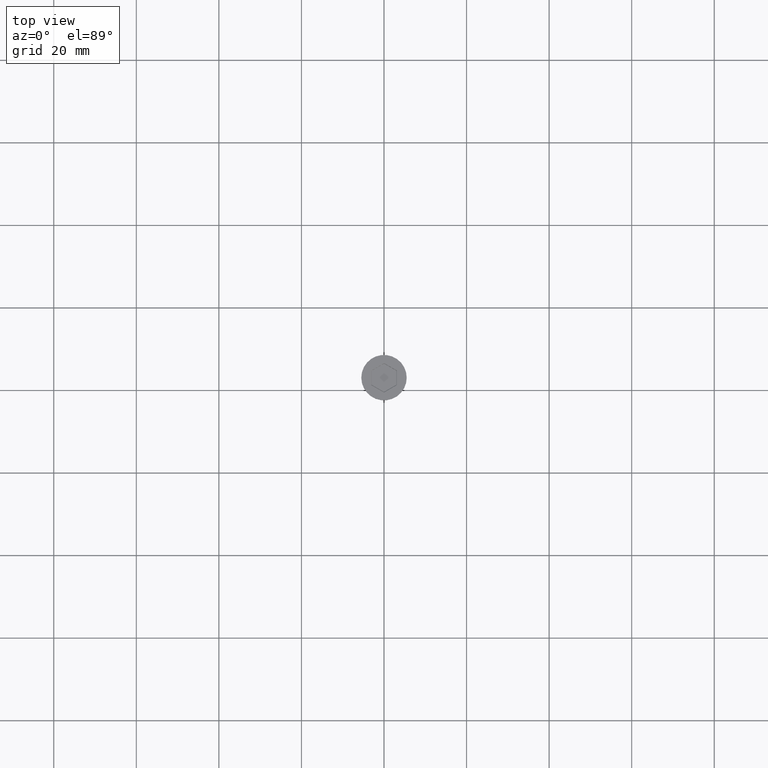
[diagram: clean part render]
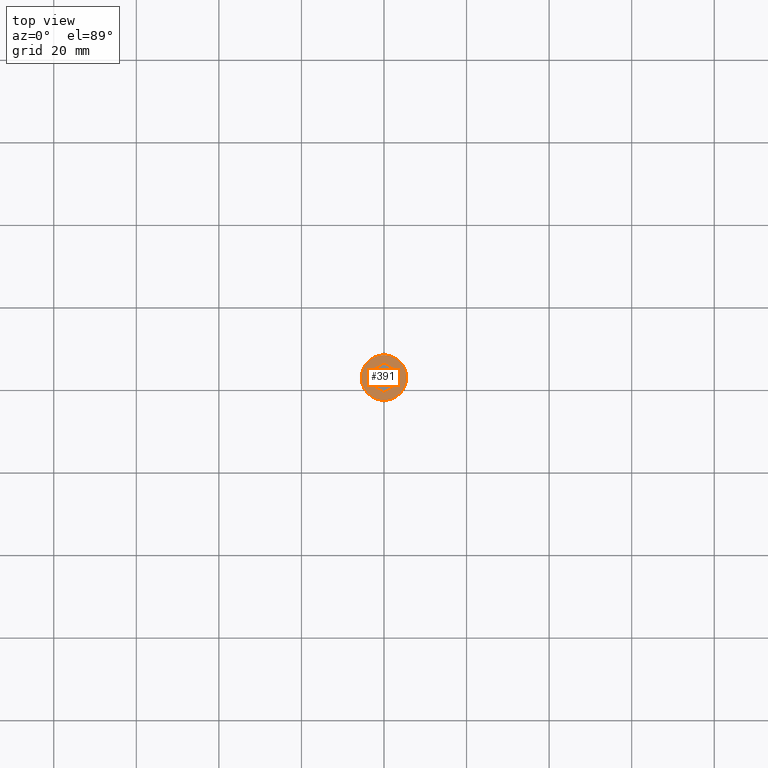
[diagram: same view with one face highlighted and labeled with its STEP entity id]
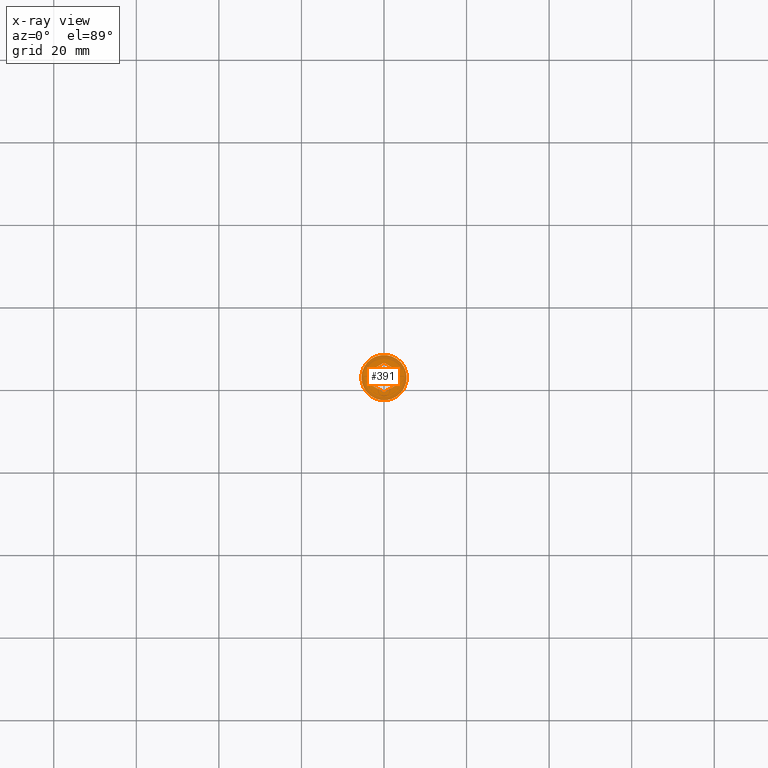
[diagram: x-ray of the same camera — body ghosted, the highlighted face saturated]
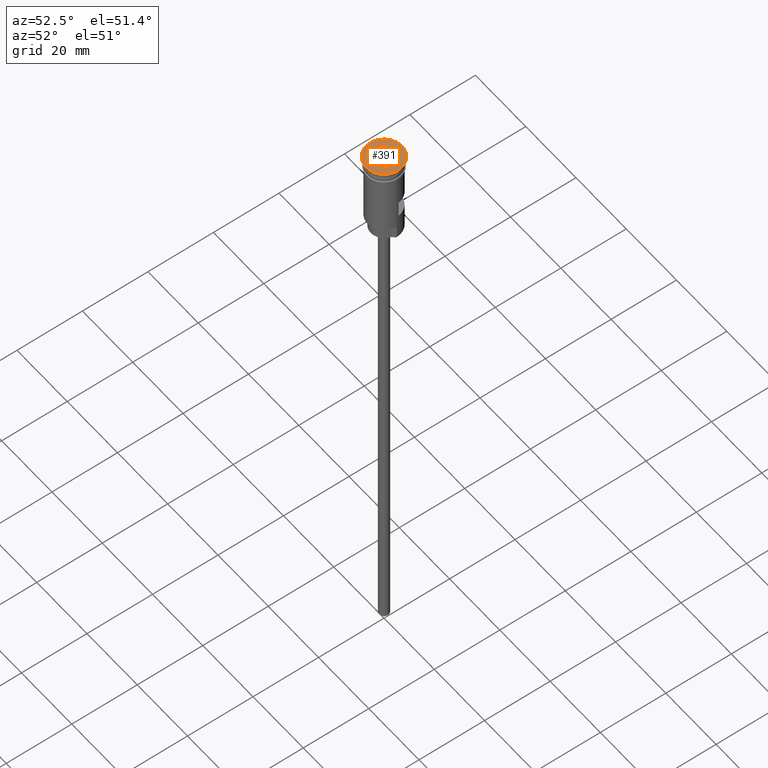
[diagram: same view with one face highlighted and labeled with its STEP entity id]
A machine part, top view. The second image highlights one B-rep face of the part: STEP entity #391.
The next image is the same camera in x-ray: the body ghosted, the highlighted face saturated — about 0% of this face is hidden behind the body in this view.
A second angle (auxiliary view) of the same face is appended — the face is thin or edge-on in the first view.
In plain terms, the highlighted planar face has unit normal (0, -0, 1).
Its self-contained STEP definition (entity closure, byte-faithful):
#79 = EDGE_CURVE ( 'NONE', #1529, #1605, #926, .T. ) ;
#80 = VERTEX_POINT ( 'NONE', #917 ) ;
#90 = DIRECTION ( 'NONE',  ( 0.000000000000000000, 1.000000000000000000, 0.000000000000000000 ) ) ;
#98 = EDGE_CURVE ( 'NONE', #731, #80, #543, .T. ) ;
#126 = DIRECTION ( 'NONE',  ( 0.8660254037844387076, 0.4999999999999998890, 0.000000000000000000 ) ) ;
#130 = EDGE_CURVE ( 'NONE', #1605, #731, #1420, .T. ) ;
#132 = CARTESIAN_POINT ( 'NONE',  ( -0.04999999999999187039, 3.550704155516183125, 0.000000000000000000 ) ) ;
#133 = CARTESIAN_POINT ( 'NONE',  ( 5.500000000000000000, 0.000000000000000000, 0.000000000000000000 ) ) ;
#147 = DIRECTION ( 'NONE',  ( -0.000000000000000000, -0.000000000000000000, 1.000000000000000000 ) ) ;
#192 = VERTEX_POINT ( 'NONE', #695 ) ;
#299 = ORIENTED_EDGE ( 'NONE', *, *, #450, .T. ) ;
#304 = EDGE_CURVE ( 'NONE', #192, #1529, #703, .T. ) ;
#385 = LINE ( 'NONE', #1020, #1320 ) ;
#386 = ORIENTED_EDGE ( 'NONE', *, *, #79, .T. ) ;
#391 = ADVANCED_FACE ( 'NONE', ( #625, #743 ), #503, .T. ) ;
#393 = VECTOR ( 'NONE', #126, 1000.000000000000000 ) ;
#407 = DIRECTION ( 'NONE',  ( 1.000000000000000000, 0.000000000000000000, 0.000000000000000000 ) ) ;
#450 = EDGE_CURVE ( 'NONE', #1263, #1408, #919, .T. ) ;
#503 = PLANE ( 'NONE',  #682 ) ;
#513 = DIRECTION ( 'NONE',  ( 1.000000000000000000, 0.000000000000000000, 0.000000000000000000 ) ) ;
#533 = ORIENTED_EDGE ( 'NONE', *, *, #130, .T. ) ;
#540 = VERTEX_POINT ( 'NONE', #1141 ) ;
#543 = LINE ( 'NONE', #1050, #1309 ) ;
#567 = EDGE_CURVE ( 'NONE', #1408, #1263, #1547, .T. ) ;
#589 = ORIENTED_EDGE ( 'NONE', *, *, #567, .T. ) ;
#625 = FACE_BOUND ( 'NONE', #1167, .T. ) ;
#637 = VECTOR ( 'NONE', #1356, 1000.000000000000000 ) ;
#650 = CARTESIAN_POINT ( 'NONE',  ( 0.000000000000000000, 0.000000000000000000, 0.000000000000000000 ) ) ;
#682 = AXIS2_PLACEMENT_3D ( 'NONE', #999, #845, #875 ) ;
#695 = CARTESIAN_POINT ( 'NONE',  ( -3.099999999999983213, -1.789785834487829241, 0.000000000000000000 ) ) ;
#703 = LINE ( 'NONE', #1205, #736 ) ;
#710 = VECTOR ( 'NONE', #1291, 1000.000000000000114 ) ;
#731 = VERTEX_POINT ( 'NONE', #1597 ) ;
#736 = VECTOR ( 'NONE', #90, 1000.000000000000000 ) ;
#743 = FACE_OUTER_BOUND ( 'NONE', #832, .T. ) ;
#820 = CARTESIAN_POINT ( 'NONE',  ( -3.099999999999983213, 1.789785834487829908, 0.000000000000000000 ) ) ;
#832 = EDGE_LOOP ( 'NONE', ( #589, #299 ) ) ;
#845 = DIRECTION ( 'NONE',  ( 0.000000000000000000, -0.000000000000000000, 1.000000000000000000 ) ) ;
#848 = AXIS2_PLACEMENT_3D ( 'NONE', #650, #1154, #407 ) ;
#853 = EDGE_CURVE ( 'NONE', #540, #192, #1589, .T. ) ;
#860 = CARTESIAN_POINT ( 'NONE',  ( -3.049999999999991385, -1.818653347947305932, 0.000000000000000000 ) ) ;
#875 = DIRECTION ( 'NONE',  ( 1.000000000000000000, 0.000000000000000000, 0.000000000000000000 ) ) ;
#917 = CARTESIAN_POINT ( 'NONE',  ( 3.099999999999982769, -1.789785834487828353, 0.000000000000000000 ) ) ;
#919 = CIRCLE ( 'NONE', #949, 5.500000000000000000 ) ;
#926 = LINE ( 'NONE', #132, #393 ) ;
#949 = AXIS2_PLACEMENT_3D ( 'NONE', #1389, #147, #513 ) ;
#999 = CARTESIAN_POINT ( 'NONE',  ( 0.000000000000000000, 0.000000000000000000, 0.000000000000000000 ) ) ;
#1020 = CARTESIAN_POINT ( 'NONE',  ( 0.04999999999999141936, -3.550704155516182237, 0.000000000000000000 ) ) ;
#1050 = CARTESIAN_POINT ( 'NONE',  ( 3.099999999999982769, -1.732050807568876083, 0.000000000000000000 ) ) ;
#1074 = ORIENTED_EDGE ( 'NONE', *, *, #1370, .T. ) ;
#1141 = CARTESIAN_POINT ( 'NONE',  ( -1.958864205101993824E-16, -3.579571668975658927, 0.000000000000000000 ) ) ;
#1154 = DIRECTION ( 'NONE',  ( -0.000000000000000000, -0.000000000000000000, 1.000000000000000000 ) ) ;
#1167 = EDGE_LOOP ( 'NONE', ( #1202, #386, #533, #1536, #1074, #1463 ) ) ;
#1202 = ORIENTED_EDGE ( 'NONE', *, *, #304, .T. ) ;
#1205 = CARTESIAN_POINT ( 'NONE',  ( -3.099999999999983213, 1.732050807568876971, 0.000000000000000000 ) ) ;
#1263 = VERTEX_POINT ( 'NONE', #1457 ) ;
#1291 = DIRECTION ( 'NONE',  ( 0.8660254037844388186, -0.4999999999999997780, 0.000000000000000000 ) ) ;
#1309 = VECTOR ( 'NONE', #1540, 1000.000000000000000 ) ;
#1320 = VECTOR ( 'NONE', #1504, 1000.000000000000114 ) ;
#1356 = DIRECTION ( 'NONE',  ( -0.8660254037844387076, 0.4999999999999998335, 0.000000000000000000 ) ) ;
#1370 = EDGE_CURVE ( 'NONE', #80, #540, #385, .T. ) ;
#1389 = CARTESIAN_POINT ( 'NONE',  ( 0.000000000000000000, 0.000000000000000000, 0.000000000000000000 ) ) ;
#1408 = VERTEX_POINT ( 'NONE', #133 ) ;
#1420 = LINE ( 'NONE', #1503, #710 ) ;
#1448 = CARTESIAN_POINT ( 'NONE',  ( 6.103073414120078086E-16, 3.579571668975660259, 0.000000000000000000 ) ) ;
#1457 = CARTESIAN_POINT ( 'NONE',  ( -5.500000000000000000, 6.735557395310442023E-16, 0.000000000000000000 ) ) ;
#1463 = ORIENTED_EDGE ( 'NONE', *, *, #853, .T. ) ;
#1503 = CARTESIAN_POINT ( 'NONE',  ( 3.049999999999991829, 1.818653347947307708, 0.000000000000000000 ) ) ;
#1504 = DIRECTION ( 'NONE',  ( -0.8660254037844385966, -0.5000000000000001110, 0.000000000000000000 ) ) ;
#1529 = VERTEX_POINT ( 'NONE', #820 ) ;
#1536 = ORIENTED_EDGE ( 'NONE', *, *, #98, .T. ) ;
#1540 = DIRECTION ( 'NONE',  ( -1.251928832280966188E-16, -1.000000000000000000, 0.000000000000000000 ) ) ;
#1547 = CIRCLE ( 'NONE', #848, 5.500000000000000000 ) ;
#1589 = LINE ( 'NONE', #860, #637 ) ;
#1597 = CARTESIAN_POINT ( 'NONE',  ( 3.099999999999983213, 1.789785834487831462, 0.000000000000000000 ) ) ;
#1605 = VERTEX_POINT ( 'NONE', #1448 ) ;